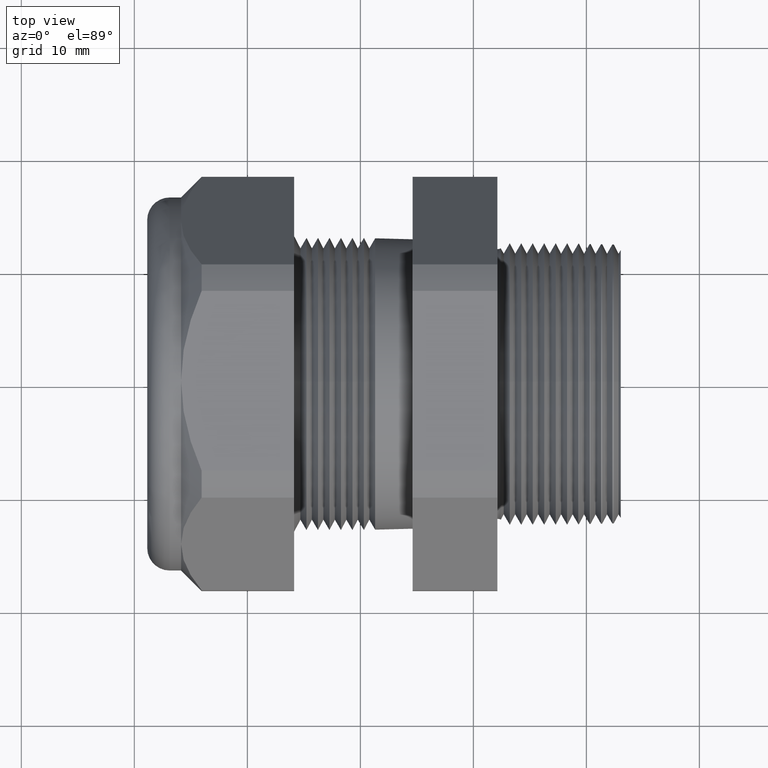
[diagram: clean part render]
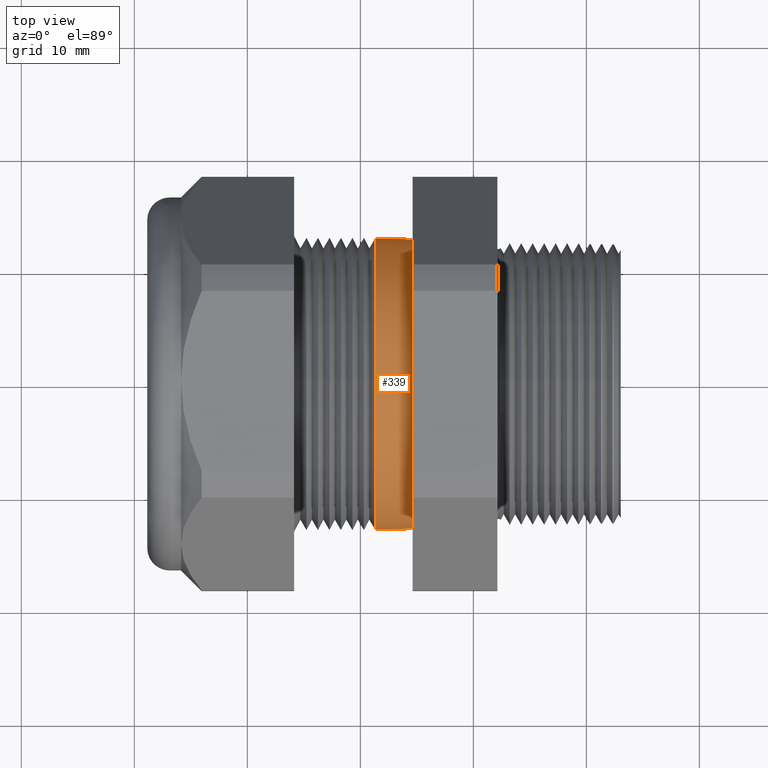
[diagram: same view with one face highlighted and labeled with its STEP entity id]
A machine part, top view. The second image highlights one B-rep face of the part: STEP entity #339.
In plain terms, the highlighted conical surface has half-angle 1.5 deg.
Its self-contained STEP definition (entity closure, byte-faithful):
#2 = EDGE_CURVE ( 'NONE', #6, #3, #1486, .T. ) ;
#3 = VERTEX_POINT ( 'NONE', #1481 ) ;
#6 = VERTEX_POINT ( 'NONE', #1475 ) ;
#102 = DIRECTION ( 'NONE',  ( 0.0000000000000000000, 0.0000000000000000000, -1.000000000000000000 ) ) ;
#258 = EDGE_LOOP ( 'NONE', ( #259, #263, #265, #266, #323 ) ) ;
#259 = ORIENTED_EDGE ( 'NONE', *, *, #260, .F. ) ;
#260 = EDGE_CURVE ( 'NONE', #261, #262, #1945, .T. ) ;
#261 = VERTEX_POINT ( 'NONE', #1940 ) ;
#262 = VERTEX_POINT ( 'NONE', #1939 ) ;
#263 = ORIENTED_EDGE ( 'NONE', *, *, #264, .T. ) ;
#264 = EDGE_CURVE ( 'NONE', #261, #3, #1938, .T. ) ;
#265 = ORIENTED_EDGE ( 'NONE', *, *, #2, .F. ) ;
#266 = ORIENTED_EDGE ( 'NONE', *, *, #267, .F. ) ;
#267 = EDGE_CURVE ( 'NONE', #268, #6, #1932, .T. ) ;
#268 = VERTEX_POINT ( 'NONE', #1992 ) ;
#323 = ORIENTED_EDGE ( 'NONE', *, *, #324, .F. ) ;
#324 = EDGE_CURVE ( 'NONE', #262, #268, #2069, .T. ) ;
#339 = ADVANCED_FACE ( 'NONE', ( #2100 ), #2099, .T. ) ;
#1475 = CARTESIAN_POINT ( 'NONE',  ( -0.7358071795646596900, 5.316608145873837600E-017, 0.5076055724160836200 ) ) ;
#1481 = CARTESIAN_POINT ( 'NONE',  ( -0.7358071795646596900, 0.5076055724160828400, 6.216375394887161000E-017 ) ) ;
#1482 = DIRECTION ( 'NONE',  ( 0.0000000000000000000, 0.0000000000000000000, -1.000000000000000000 ) ) ;
#1483 = DIRECTION ( 'NONE',  ( -1.000000000000000000, 0.0000000000000000000, 0.0000000000000000000 ) ) ;
#1484 = CARTESIAN_POINT ( 'NONE',  ( -0.7358071795646596900, -1.426801422919023000E-016, 0.0000000000000000000 ) ) ;
#1485 = AXIS2_PLACEMENT_3D ( 'NONE', #1484, #1483, #1482 ) ;
#1486 = CIRCLE ( 'NONE', #1485, 0.5076055724160830600 ) ;
#1680 = DIRECTION ( 'NONE',  ( -1.000000000000000000, 0.0000000000000000000, 0.0000000000000000000 ) ) ;
#1930 = CARTESIAN_POINT ( 'NONE',  ( -0.7358071795646596900, -1.426801422919023000E-016, 0.0000000000000000000 ) ) ;
#1931 = AXIS2_PLACEMENT_3D ( 'NONE', #1930, #1680, #102 ) ;
#1932 = CIRCLE ( 'NONE', #1931, 0.5076055724160830600 ) ;
#1935 = DIRECTION ( 'NONE',  ( -0.9996573249755573700, 0.02617694830786627600, 3.205751595667411200E-018 ) ) ;
#1936 = VECTOR ( 'NONE', #1935, 39.37007874015748100 ) ;
#1937 = CARTESIAN_POINT ( 'NONE',  ( -0.6052755905511810800, 0.5041874824638754600, 6.174515865695475800E-017 ) ) ;
#1938 = LINE ( 'NONE', #1937, #1936 ) ;
#1939 = CARTESIAN_POINT ( 'NONE',  ( -0.6052755905511810800, -0.5041874824638757900, 0.0000000000000000000 ) ) ;
#1940 = CARTESIAN_POINT ( 'NONE',  ( -0.6052755905511810800, 0.5041874824638754600, 6.195445630291319000E-017 ) ) ;
#1941 = DIRECTION ( 'NONE',  ( 0.0000000000000000000, 1.000000000000000000, 0.0000000000000000000 ) ) ;
#1942 = DIRECTION ( 'NONE',  ( 1.000000000000000000, -3.749030204222210100E-017, -0.0000000000000000000 ) ) ;
#1943 = CARTESIAN_POINT ( 'NONE',  ( -0.6052755905511810800, -1.475738109900686300E-016, 0.0000000000000000000 ) ) ;
#1944 = AXIS2_PLACEMENT_3D ( 'NONE', #1943, #1942, #1941 ) ;
#1945 = CIRCLE ( 'NONE', #1944, 0.5041874824638756800 ) ;
#1992 = CARTESIAN_POINT ( 'NONE',  ( -0.7358071795646596900, -0.5076055724160831700, 0.0000000000000000000 ) ) ;
#2066 = DIRECTION ( 'NONE',  ( -0.9996573249755573700, -0.02617694830786620000, 0.0000000000000000000 ) ) ;
#2067 = VECTOR ( 'NONE', #2066, 39.37007874015748100 ) ;
#2068 = CARTESIAN_POINT ( 'NONE',  ( -0.6052755905511810800, -0.5041874824638757900, 0.0000000000000000000 ) ) ;
#2069 = LINE ( 'NONE', #2068, #2067 ) ;
#2095 = DIRECTION ( 'NONE',  ( 0.0000000000000000000, -1.000000000000000000, 0.0000000000000000000 ) ) ;
#2096 = DIRECTION ( 'NONE',  ( -1.000000000000000000, 3.749030204222210100E-017, 0.0000000000000000000 ) ) ;
#2097 = CARTESIAN_POINT ( 'NONE',  ( -0.6052755905511810800, -1.475738109900686300E-016, 0.0000000000000000000 ) ) ;
#2098 = AXIS2_PLACEMENT_3D ( 'NONE', #2097, #2096, #2095 ) ;
#2099 = CONICAL_SURFACE ( 'NONE', #2098, 0.5041874824638756800, 0.02617993877990802700 ) ;
#2100 = FACE_OUTER_BOUND ( 'NONE', #258, .T. ) ;